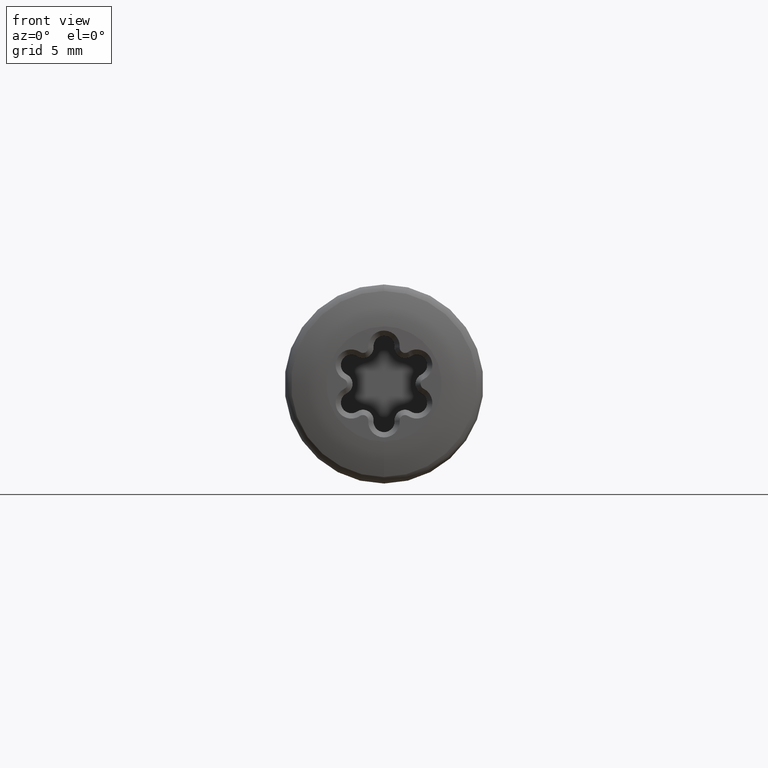
[diagram: clean part render]
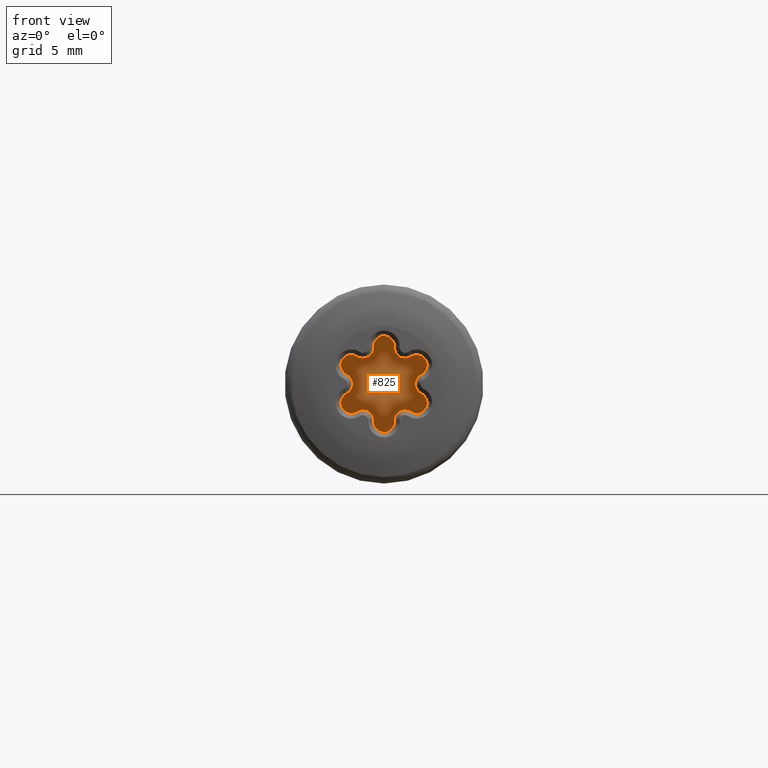
[diagram: same view with one face highlighted and labeled with its STEP entity id]
A machine part, front view. The second image highlights one B-rep face of the part: STEP entity #825.
In plain terms, the highlighted planar face has unit normal (0, -1, 0).
Its self-contained STEP definition (entity closure, byte-faithful):
#35 = EDGE_CURVE ( 'NONE', #3803, #3443, #1978, .T. ) ;
#53 = ORIENTED_EDGE ( 'NONE', *, *, #893, .T. ) ;
#84 = DIRECTION ( 'NONE',  ( 0.000000000000000000, 0.000000000000000000, -1.000000000000000000 ) ) ;
#112 = ORIENTED_EDGE ( 'NONE', *, *, #3615, .T. ) ;
#117 = DIRECTION ( 'NONE',  ( -0.000000000000000000, 1.000000000000000000, -0.000000000000000000 ) ) ;
#130 = CARTESIAN_POINT ( 'NONE',  ( -0.4989715188468042406, 2.899999999999999911, -1.767946554323970965 ) ) ;
#164 = CIRCLE ( 'NONE', #2017, 0.5041309189016985881 ) ;
#170 = CARTESIAN_POINT ( 'NONE',  ( -1.002065459450855123, 2.899999999999999911, 1.735628288278717068 ) ) ;
#209 = VERTEX_POINT ( 'NONE', #1603 ) ;
#264 = VERTEX_POINT ( 'NONE', #3217 ) ;
#300 = ORIENTED_EDGE ( 'NONE', *, *, #35, .T. ) ;
#340 = AXIS2_PLACEMENT_3D ( 'NONE', #1492, #2793, #2458 ) ;
#350 = DIRECTION ( 'NONE',  ( -0.000000000000000000, 1.000000000000000000, -0.000000000000000000 ) ) ;
#351 = CARTESIAN_POINT ( 'NONE',  ( -1.780572388001127937, 2.899999999999999911, 0.4518512660757342814 ) ) ;
#398 = AXIS2_PLACEMENT_3D ( 'NONE', #1799, #477, #2443 ) ;
#477 = DIRECTION ( 'NONE',  ( -0.000000000000000000, -1.000000000000000000, -0.000000000000000000 ) ) ;
#553 = CIRCLE ( 'NONE', #1946, 0.4999999999999982792 ) ;
#555 = DIRECTION ( 'NONE',  ( 0.000000000000000000, 0.000000000000000000, -1.000000000000000000 ) ) ;
#565 = ORIENTED_EDGE ( 'NONE', *, *, #3081, .T. ) ;
#733 = EDGE_CURVE ( 'NONE', #3015, #1009, #3598, .T. ) ;
#771 = CARTESIAN_POINT ( 'NONE',  ( 1.002065459450842244, 2.899999999999999911, 1.735628288278724840 ) ) ;
#825 = ADVANCED_FACE ( 'NONE', ( #4019 ), #1712, .T. ) ;
#893 = EDGE_CURVE ( 'NONE', #1048, #3015, #553, .T. ) ;
#939 = DIRECTION ( 'NONE',  ( -0.000000000000000000, -1.000000000000000000, -0.000000000000000000 ) ) ;
#968 = CIRCLE ( 'NONE', #398, 0.4999999999999998890 ) ;
#1009 = VERTEX_POINT ( 'NONE', #2426 ) ;
#1048 = VERTEX_POINT ( 'NONE', #130 ) ;
#1114 = VERTEX_POINT ( 'NONE', #2113 ) ;
#1164 = CARTESIAN_POINT ( 'NONE',  ( 0.4989715188468044627, 2.899999999999999911, 1.767946554323970965 ) ) ;
#1172 = EDGE_CURVE ( 'NONE', #2185, #1728, #3513, .T. ) ;
#1295 = CARTESIAN_POINT ( 'NONE',  ( 1.780572388001125272, 2.899999999999999911, 0.4518512660757465493 ) ) ;
#1326 = ORIENTED_EDGE ( 'NONE', *, *, #3195, .T. ) ;
#1386 = DIRECTION ( 'NONE',  ( 0.000000000000000000, 0.000000000000000000, 1.000000000000000000 ) ) ;
#1474 = EDGE_CURVE ( 'NONE', #1728, #1114, #1939, .T. ) ;
#1492 = CARTESIAN_POINT ( 'NONE',  ( 2.004130918901697367, 2.899999999999999911, 7.043594962189453890E-15 ) ) ;
#1509 = AXIS2_PLACEMENT_3D ( 'NONE', #3663, #3958, #84 ) ;
#1559 = DIRECTION ( 'NONE',  ( 0.000000000000000000, 0.000000000000000000, 1.000000000000000000 ) ) ;
#1565 = AXIS2_PLACEMENT_3D ( 'NONE', #4076, #3558, #3140 ) ;
#1569 = ORIENTED_EDGE ( 'NONE', *, *, #733, .T. ) ;
#1603 = CARTESIAN_POINT ( 'NONE',  ( -1.281600869154321032, 2.899999999999999911, 1.316095288248223971 ) ) ;
#1647 = CARTESIAN_POINT ( 'NONE',  ( -1.558845726811987076, 2.899999999999999911, -0.9000000000000053513 ) ) ;
#1652 = CARTESIAN_POINT ( 'NONE',  ( -2.004130918901697367, 2.899999999999999911, -6.856091008335676607E-15 ) ) ;
#1712 = PLANE ( 'NONE',  #3040 ) ;
#1724 = CARTESIAN_POINT ( 'NONE',  ( -0.5010327297254301149, 2.899999999999999911, 1.767814144139358890 ) ) ;
#1726 = ORIENTED_EDGE ( 'NONE', *, *, #3286, .T. ) ;
#1728 = VERTEX_POINT ( 'NONE', #1295 ) ;
#1729 = AXIS2_PLACEMENT_3D ( 'NONE', #3495, #2542, #1559 ) ;
#1799 = CARTESIAN_POINT ( 'NONE',  ( -1.558845726811993071, 2.899999999999999911, 0.8999999999999946931 ) ) ;
#1806 = CARTESIAN_POINT ( 'NONE',  ( -1.281600869154311262, 2.899999999999999911, -1.316095288248232631 ) ) ;
#1869 = VERTEX_POINT ( 'NONE', #351 ) ;
#1873 = CIRCLE ( 'NONE', #2135, 0.5041309189016996983 ) ;
#1922 = CARTESIAN_POINT ( 'NONE',  ( 1.780572388001127715, 2.899999999999999911, -0.4518512660757343924 ) ) ;
#1939 = CIRCLE ( 'NONE', #1729, 0.4999999999999987232 ) ;
#1946 = AXIS2_PLACEMENT_3D ( 'NONE', #3011, #3320, #1386 ) ;
#1978 = CIRCLE ( 'NONE', #4067, 0.4999999999999982792 ) ;
#2017 = AXIS2_PLACEMENT_3D ( 'NONE', #1652, #350, #4191 ) ;
#2060 = CARTESIAN_POINT ( 'NONE',  ( -0.4989715188468145657, 2.899999999999999911, 1.767946554323966302 ) ) ;
#2113 = CARTESIAN_POINT ( 'NONE',  ( 1.281600869154311706, 2.899999999999999911, 1.316095288248231965 ) ) ;
#2135 = AXIS2_PLACEMENT_3D ( 'NONE', #771, #117, #4003 ) ;
#2185 = VERTEX_POINT ( 'NONE', #1922 ) ;
#2288 = DIRECTION ( 'NONE',  ( -0.000000000000000000, -1.000000000000000000, -0.000000000000000000 ) ) ;
#2426 = CARTESIAN_POINT ( 'NONE',  ( 1.281600869154321920, 2.899999999999999911, -1.316095288248223527 ) ) ;
#2435 = EDGE_LOOP ( 'NONE', ( #112, #2765, #3105, #565, #1326, #53, #1569, #3612, #3790, #2808, #1726, #300 ) ) ;
#2443 = DIRECTION ( 'NONE',  ( 0.000000000000000000, 0.000000000000000000, 1.000000000000000000 ) ) ;
#2449 = CIRCLE ( 'NONE', #3227, 0.5041309189016985881 ) ;
#2458 = DIRECTION ( 'NONE',  ( 0.000000000000000000, 0.000000000000000000, -1.000000000000000000 ) ) ;
#2461 = AXIS2_PLACEMENT_3D ( 'NONE', #1647, #2288, #2620 ) ;
#2542 = DIRECTION ( 'NONE',  ( -0.000000000000000000, -1.000000000000000000, -0.000000000000000000 ) ) ;
#2620 = DIRECTION ( 'NONE',  ( 0.000000000000000000, 0.000000000000000000, 1.000000000000000000 ) ) ;
#2757 = CIRCLE ( 'NONE', #3822, 0.5041309189016992542 ) ;
#2765 = ORIENTED_EDGE ( 'NONE', *, *, #3724, .T. ) ;
#2793 = DIRECTION ( 'NONE',  ( -0.000000000000000000, 1.000000000000000000, -0.000000000000000000 ) ) ;
#2794 = DIRECTION ( 'NONE',  ( -0.000000000000000000, 1.000000000000000000, -0.000000000000000000 ) ) ;
#2808 = ORIENTED_EDGE ( 'NONE', *, *, #1474, .T. ) ;
#2929 = EDGE_CURVE ( 'NONE', #1869, #264, #164, .T. ) ;
#2940 = DIRECTION ( 'NONE',  ( 0.000000000000000000, 0.000000000000000000, 1.000000000000000000 ) ) ;
#2979 = DIRECTION ( 'NONE',  ( 0.000000000000000000, -0.000000000000000000, -1.000000000000000000 ) ) ;
#3011 = CARTESIAN_POINT ( 'NONE',  ( 5.416280179092257454E-15, 2.899999999999999911, -1.800000000000000488 ) ) ;
#3015 = VERTEX_POINT ( 'NONE', #3843 ) ;
#3040 = AXIS2_PLACEMENT_3D ( 'NONE', #1724, #4002, #2979 ) ;
#3058 = CIRCLE ( 'NONE', #2461, 0.4999999999999989453 ) ;
#3081 = EDGE_CURVE ( 'NONE', #264, #4022, #3058, .T. ) ;
#3105 = ORIENTED_EDGE ( 'NONE', *, *, #2929, .T. ) ;
#3113 = CARTESIAN_POINT ( 'NONE',  ( -1.002065459450841578, 2.899999999999999911, -1.735628288278725062 ) ) ;
#3140 = DIRECTION ( 'NONE',  ( 0.000000000000000000, 0.000000000000000000, 1.000000000000000000 ) ) ;
#3164 = EDGE_CURVE ( 'NONE', #1009, #2185, #3704, .T. ) ;
#3195 = EDGE_CURVE ( 'NONE', #4022, #1048, #2757, .T. ) ;
#3217 = CARTESIAN_POINT ( 'NONE',  ( -1.780572388001125272, 2.899999999999999911, -0.4518512660757467714 ) ) ;
#3227 = AXIS2_PLACEMENT_3D ( 'NONE', #170, #2794, #4053 ) ;
#3286 = EDGE_CURVE ( 'NONE', #1114, #3803, #1873, .T. ) ;
#3320 = DIRECTION ( 'NONE',  ( -0.000000000000000000, -1.000000000000000000, -0.000000000000000000 ) ) ;
#3422 = DIRECTION ( 'NONE',  ( -0.000000000000000000, 1.000000000000000000, -0.000000000000000000 ) ) ;
#3443 = VERTEX_POINT ( 'NONE', #2060 ) ;
#3495 = CARTESIAN_POINT ( 'NONE',  ( 1.558845726811987520, 2.899999999999999911, 0.9000000000000051292 ) ) ;
#3513 = CIRCLE ( 'NONE', #340, 0.5041309189016988102 ) ;
#3558 = DIRECTION ( 'NONE',  ( -0.000000000000000000, -1.000000000000000000, -0.000000000000000000 ) ) ;
#3598 = CIRCLE ( 'NONE', #1509, 0.5041309189016996983 ) ;
#3612 = ORIENTED_EDGE ( 'NONE', *, *, #3164, .T. ) ;
#3615 = EDGE_CURVE ( 'NONE', #3443, #209, #2449, .T. ) ;
#3663 = CARTESIAN_POINT ( 'NONE',  ( 1.002065459450855345, 2.899999999999999911, -1.735628288278716846 ) ) ;
#3704 = CIRCLE ( 'NONE', #1565, 0.4999999999999982792 ) ;
#3724 = EDGE_CURVE ( 'NONE', #209, #1869, #968, .T. ) ;
#3790 = ORIENTED_EDGE ( 'NONE', *, *, #1172, .T. ) ;
#3803 = VERTEX_POINT ( 'NONE', #1164 ) ;
#3822 = AXIS2_PLACEMENT_3D ( 'NONE', #3113, #3422, #555 ) ;
#3835 = CARTESIAN_POINT ( 'NONE',  ( -5.195843755245734660E-15, 2.899999999999999911, 1.800000000000000488 ) ) ;
#3843 = CARTESIAN_POINT ( 'NONE',  ( 0.4989715188468159535, 2.899999999999999911, -1.767946554323966302 ) ) ;
#3958 = DIRECTION ( 'NONE',  ( -0.000000000000000000, 1.000000000000000000, -0.000000000000000000 ) ) ;
#4002 = DIRECTION ( 'NONE',  ( 0.000000000000000000, -1.000000000000000000, 0.000000000000000000 ) ) ;
#4003 = DIRECTION ( 'NONE',  ( 0.000000000000000000, 0.000000000000000000, -1.000000000000000000 ) ) ;
#4019 = FACE_OUTER_BOUND ( 'NONE', #2435, .T. ) ;
#4022 = VERTEX_POINT ( 'NONE', #1806 ) ;
#4053 = DIRECTION ( 'NONE',  ( 0.000000000000000000, 0.000000000000000000, -1.000000000000000000 ) ) ;
#4067 = AXIS2_PLACEMENT_3D ( 'NONE', #3835, #939, #2940 ) ;
#4076 = CARTESIAN_POINT ( 'NONE',  ( 1.558845726811993071, 2.899999999999999911, -0.8999999999999954703 ) ) ;
#4191 = DIRECTION ( 'NONE',  ( 0.000000000000000000, 0.000000000000000000, -1.000000000000000000 ) ) ;